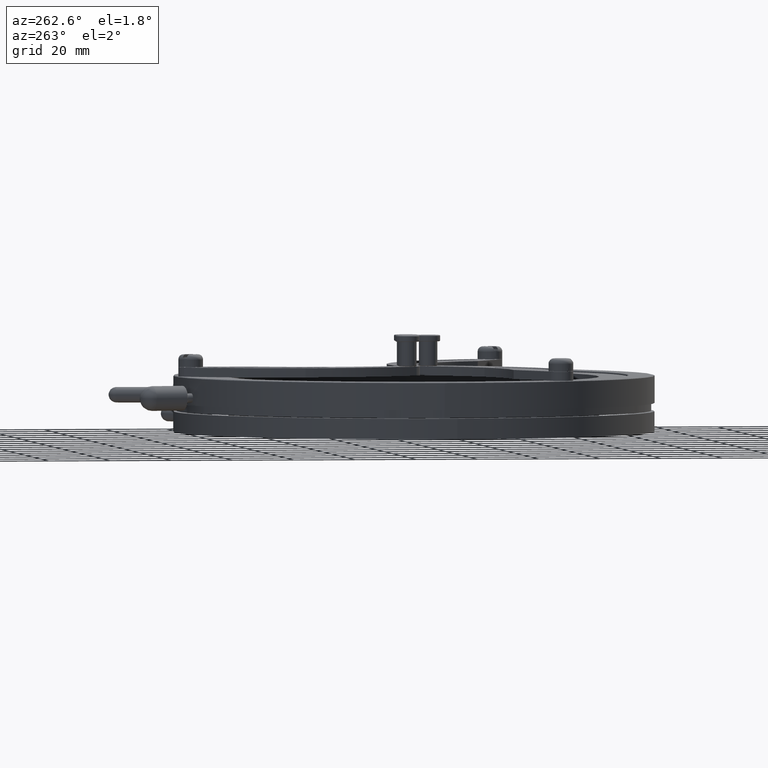
[diagram: clean part render]
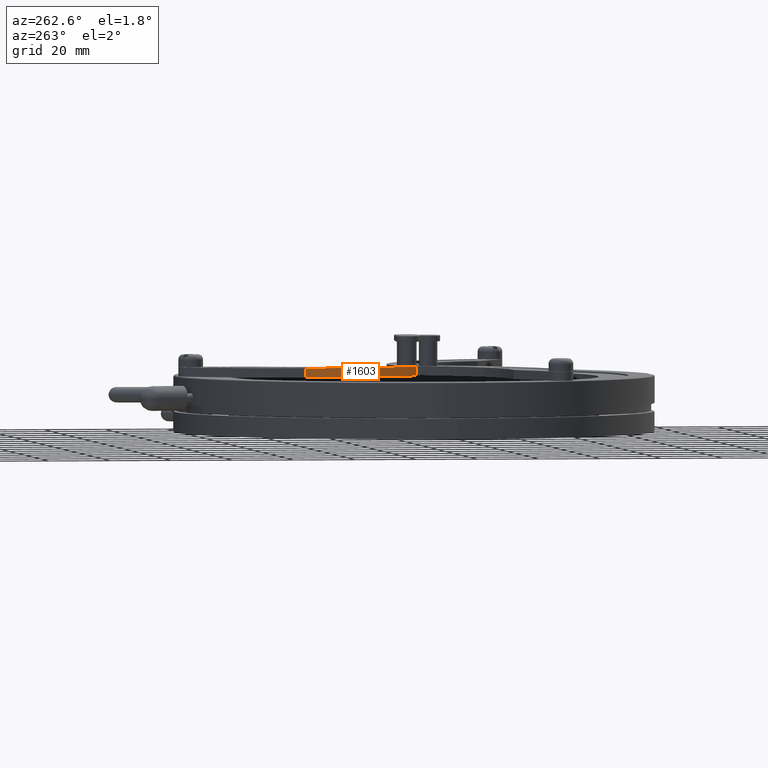
[diagram: same view with one face highlighted and labeled with its STEP entity id]
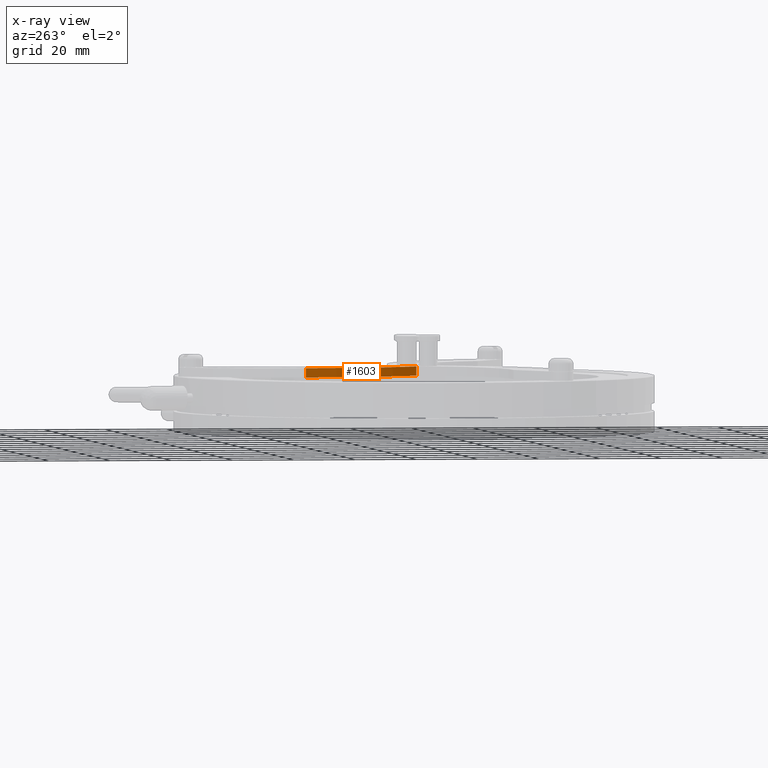
[diagram: x-ray of the same camera — body ghosted, the highlighted face saturated]
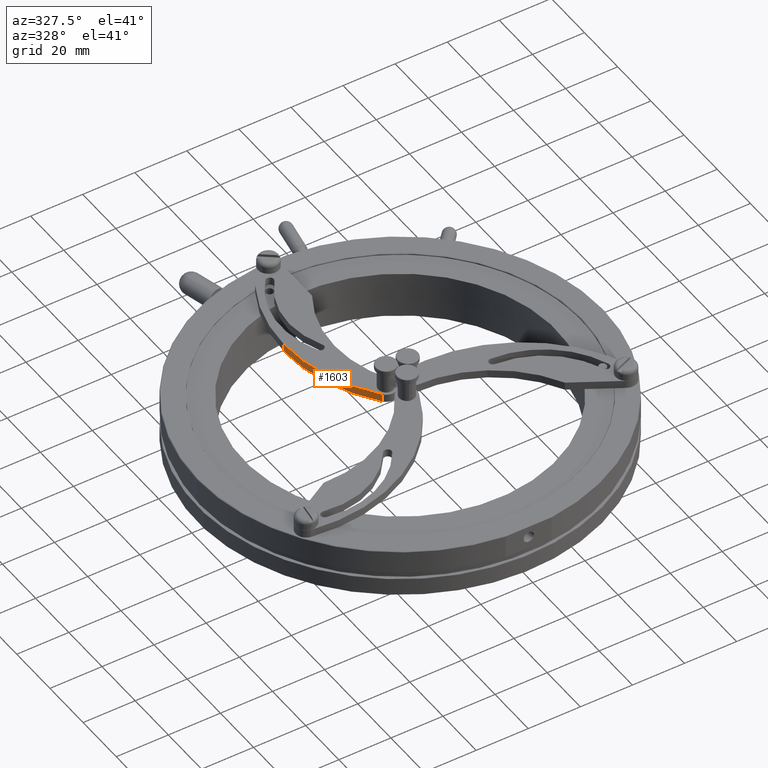
[diagram: same view with one face highlighted and labeled with its STEP entity id]
A machine part, auxiliary view. The second image highlights one B-rep face of the part: STEP entity #1603.
The next image is the same camera in x-ray: the body ghosted, the highlighted face saturated — about 0% of this face is hidden behind the body in this view.
A second angle (auxiliary view) of the same face is appended — the face is thin or edge-on in the first view.
In plain terms, the highlighted cylindrical surface (partial cylindrical patch) has radius 60 mm, axis along (-0, 0, -1).
Its self-contained STEP definition (entity closure, byte-faithful):
#770 = ORIENTED_EDGE ( 'NONE', *, *, #11240, .T. ) ;
#967 = LINE ( 'NONE', #3914, #3752 ) ;
#1077 = CARTESIAN_POINT ( 'NONE',  ( -20.44063881226262325, 37.99254203643067029, 11.99999999999995559 ) ) ;
#1267 = AXIS2_PLACEMENT_3D ( 'NONE', #7034, #7234, #10167 ) ;
#1603 = ADVANCED_FACE ( 'NONE', ( #9342 ), #9290, .T. ) ;
#1649 = CARTESIAN_POINT ( 'NONE',  ( -6.916378434630867211, 0.06944914716446731751, 12.00000000000001599 ) ) ;
#1760 = AXIS2_PLACEMENT_3D ( 'NONE', #5564, #4616, #8350 ) ;
#2981 = CARTESIAN_POINT ( 'NONE',  ( -20.44063881226262325, 37.99254203643067029, 8.999999999999953815 ) ) ;
#3103 = DIRECTION ( 'NONE',  ( -2.315488395147580962E-16, 2.292252240979164541E-16, -1.000000000000000000 ) ) ;
#3467 = ORIENTED_EDGE ( 'NONE', *, *, #6023, .T. ) ;
#3674 = DIRECTION ( 'NONE',  ( -2.315488395147580962E-16, 2.292252240979164541E-16, -1.000000000000000000 ) ) ;
#3752 = VECTOR ( 'NONE', #3674, 1000.000000000000000 ) ;
#3907 = DIRECTION ( 'NONE',  ( 0.9999999178578101722, 0.0004053200868212571899, -2.312964634635784372E-16 ) ) ;
#3914 = CARTESIAN_POINT ( 'NONE',  ( -20.44063881226153967, 37.99254203643067029, 11.99999999999995559 ) ) ;
#3993 = VECTOR ( 'NONE', #3103, 1000.000000000000000 ) ;
#4043 = CARTESIAN_POINT ( 'NONE',  ( -6.916378434630867211, 0.06944914716446731751, 12.00000000000001599 ) ) ;
#4616 = DIRECTION ( 'NONE',  ( -2.315488395147580962E-16, 2.292252240979164541E-16, -1.000000000000000000 ) ) ;
#4788 = CARTESIAN_POINT ( 'NONE',  ( 39.55935625920599108, 38.01686124163994407, 11.99999999999994138 ) ) ;
#5127 = EDGE_CURVE ( 'NONE', #11726, #8944, #10580, .T. ) ;
#5564 = CARTESIAN_POINT ( 'NONE',  ( 39.55935625920599108, 38.01686124163994407, 11.99999999999994138 ) ) ;
#6023 = EDGE_CURVE ( 'NONE', #10198, #8944, #6306, .T. ) ;
#6306 = CIRCLE ( 'NONE', #1267, 59.99999999999892708 ) ;
#7034 = CARTESIAN_POINT ( 'NONE',  ( 39.55935625920599108, 38.01686124163994407, 8.999999999999939604 ) ) ;
#7097 = ORIENTED_EDGE ( 'NONE', *, *, #8730, .F. ) ;
#7234 = DIRECTION ( 'NONE',  ( 2.315488395147580962E-16, -2.292252240979164541E-16, 1.000000000000000000 ) ) ;
#8350 = DIRECTION ( 'NONE',  ( -0.9999999178578101722, -0.0004053200868212572441, 2.312964634635784372E-16 ) ) ;
#8628 = DIRECTION ( 'NONE',  ( 2.315488395147580962E-16, -2.292252240979164541E-16, 1.000000000000000000 ) ) ;
#8725 = CARTESIAN_POINT ( 'NONE',  ( -6.916378434630922278, 0.06944914716443262304, 9.000000000000017764 ) ) ;
#8730 = EDGE_CURVE ( 'NONE', #10614, #11726, #11679, .T. ) ;
#8944 = VERTEX_POINT ( 'NONE', #8725 ) ;
#9290 = CYLINDRICAL_SURFACE ( 'NONE', #1760, 59.99999999999891998 ) ;
#9342 = FACE_OUTER_BOUND ( 'NONE', #10448, .T. ) ;
#9465 = AXIS2_PLACEMENT_3D ( 'NONE', #4788, #8628, #3907 ) ;
#9658 = ORIENTED_EDGE ( 'NONE', *, *, #5127, .F. ) ;
#10167 = DIRECTION ( 'NONE',  ( 0.9999999178578101722, 0.0004053200868212571899, -2.312964634635784372E-16 ) ) ;
#10198 = VERTEX_POINT ( 'NONE', #2981 ) ;
#10448 = EDGE_LOOP ( 'NONE', ( #7097, #770, #3467, #9658 ) ) ;
#10580 = LINE ( 'NONE', #4043, #3993 ) ;
#10614 = VERTEX_POINT ( 'NONE', #1077 ) ;
#11240 = EDGE_CURVE ( 'NONE', #10614, #10198, #967, .T. ) ;
#11679 = CIRCLE ( 'NONE', #9465, 59.99999999999892708 ) ;
#11726 = VERTEX_POINT ( 'NONE', #1649 ) ;